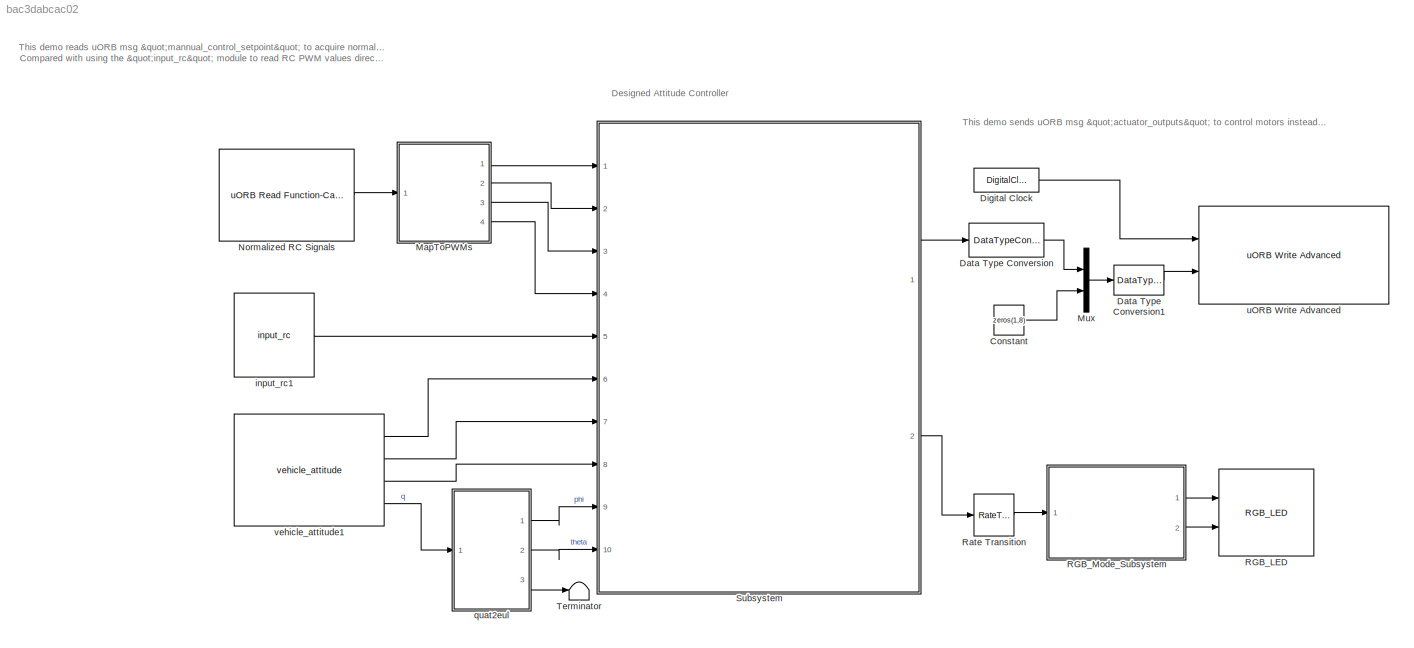
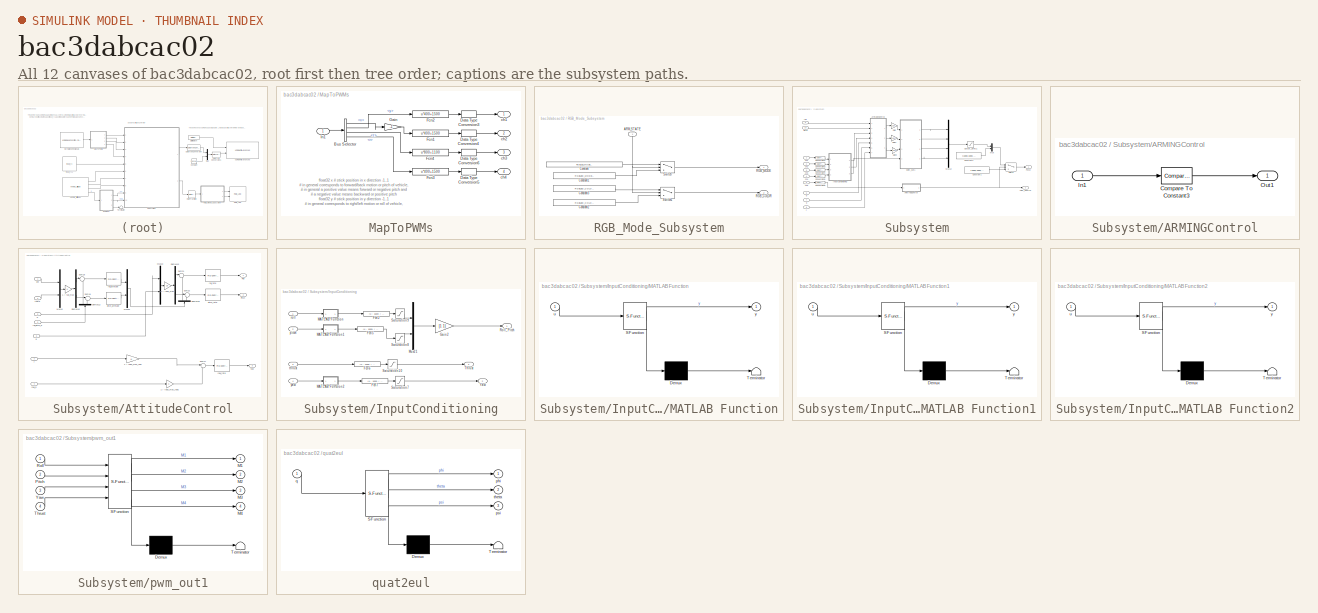
[diagram: thumbnail index - all 12 canvases of the model, root first then tree order]
MODEL slx_bac3dabcac02
KIND model
CONFIG AbsTol = auto
CONFIG EnableMultiTasking = off
CONFIG FixedStep = auto
CONFIG InitFcn = Init_control
CONFIG MaxStep = auto
CONFIG MinStep = auto
CONFIG RelTol = 1e-3
CONFIG SampleTimeConstraint = Unconstrained
CONFIG Solver = FixedStepDiscrete
CONFIG SolverName = FixedStepDiscrete
CONFIG StartTime = 0.0
CONFIG StopTime = inf
BLOCK [Constant] Constant
  Value = zeros(1,8)
BLOCK [DataTypeConversion] Data Type Conversion
  OutDataTypeStr = double
  RndMeth = Floor
  SaturateOnIntegerOverflow = off
BLOCK [DataTypeConversion] Data Type Conversion1
  OutDataTypeStr = single
  RndMeth = Floor
  SaturateOnIntegerOverflow = off
BLOCK [DigitalClock] Digital Clock
  SampleTime = -1
BLOCK [SubSystem] MapToPWMs
  Ports = [1, 4]
  RequestExecContextInheritance = off
  Variant = off
BLOCK [BusSelector] MapToPWMs/Bus Selector
  OutputAsBus = off
  OutputSignals = x,y,z,r
  Ports = [1, 4]
BLOCK [DataTypeConversion] MapToPWMs/Data Type Conversion3
  OutDataTypeStr = uint16
  RndMeth = Floor
  SaturateOnIntegerOverflow = off
BLOCK [DataTypeConversion] MapToPWMs/Data Type Conversion4
  OutDataTypeStr = uint16
  RndMeth = Floor
  SaturateOnIntegerOverflow = off
BLOCK [DataTypeConversion] MapToPWMs/Data Type Conversion5
  OutDataTypeStr = uint16
  RndMeth = Floor
  SaturateOnIntegerOverflow = off
BLOCK [DataTypeConversion] MapToPWMs/Data Type Conversion6
  OutDataTypeStr = uint16
  RndMeth = Floor
  SaturateOnIntegerOverflow = off
BLOCK [Fcn] MapToPWMs/Fcn1
  Expr = u*400+1500
BLOCK [Fcn] MapToPWMs/Fcn2
  Expr = u*400+1500
BLOCK [Fcn] MapToPWMs/Fcn3
  Expr = u*400+1500
BLOCK [Fcn] MapToPWMs/Fcn4
  Expr = u*800+1100
BLOCK [Gain] MapToPWMs/Gain
  Gain = -1
  OutDataTypeStr = Inherit: Inherit via internal rule
  ParamDataTypeStr = Inherit: Inherit via internal rule
  SaturateOnIntegerOverflow = off
BLOCK [Inport] MapToPWMs/In1
  IconDisplay = Port number
BLOCK [Outport] MapToPWMs/ch1
  IconDisplay = Port number
BLOCK [Outport] MapToPWMs/ch2
  IconDisplay = Port number
  Port = 2
BLOCK [Outport] MapToPWMs/ch3
  IconDisplay = Port number
  Port = 3
BLOCK [Outport] MapToPWMs/ch4
  IconDisplay = Port number
  Port = 4
BLOCK [Mux] Mux
  DisplayOption = bar
  Inputs = 2
  Ports = [2, 1]
BLOCK [Reference] Normalized RC Signals  REF=pixhawk_slib_uORB_RW/uORB Read Function-Call Trigger
  Ports = [0, 1]
  SourceBlock = pixhawk_slib_uORB_RW/uORB Read Function-Call Trigger
  SourceProductName = Pixhawk Target Blocks
BLOCK [Reference] RGB_LED  REF=pixhawk_slib_sensors_actuators/RGB_LED
  Ports = [2]
  SourceBlock = pixhawk_slib_sensors_actuators/RGB_LED
  SourceProductName = Pixhawk Target Blocks
  SourceType = PX4_RGBLED - controls the mode and color of the Pixhawk RGB LED
BLOCK [SubSystem] RGB_Mode_Subsystem
  Ports = [1, 2]
  RequestExecContextInheritance = off
  Variant = off
BLOCK [Inport] RGB_Mode_Subsystem/ARM_STATE
  IconDisplay = Port number
BLOCK [Constant] RGB_Mode_Subsystem/Constant
  OutDataTypeStr = Enum: RGBLED_MODE_ENUM
  Value = RGBLED_MODE_ENUM.SL_MODE_BLINK_FAST
BLOCK [Constant] RGB_Mode_Subsystem/Constant1
  OutDataTypeStr = Enum: RGBLED_MODE_ENUM
  Value = RGBLED_MODE_ENUM.SL_MODE_BREATHE
BLOCK [Constant] RGB_Mode_Subsystem/Constant2
  OutDataTypeStr = Enum: RGBLED_COLOR_ENUM
  Value = RGBLED_COLOR_ENUM.SL_COLOR_GREEN
BLOCK [Constant] RGB_Mode_Subsystem/Constant3
  OutDataTypeStr = Enum: RGBLED_COLOR_ENUM
  Value = RGBLED_COLOR_ENUM.SL_COLOR_RED
BLOCK [Outport] RGB_Mode_Subsystem/RGB_COLOR
  IconDisplay = Port number
  Port = 2
BLOCK [Outport] RGB_Mode_Subsystem/RGB_MODE
  IconDisplay = Port number
BLOCK [Switch] RGB_Mode_Subsystem/Switch
  Criteria = u2 ~= 0
  InputSameDT = off
  SaturateOnIntegerOverflow = off
  Threshold = 1500
BLOCK [Switch] RGB_Mode_Subsystem/Switch1
  Criteria = u2 ~= 0
  InputSameDT = off
  SaturateOnIntegerOverflow = off
  Threshold = 1500
BLOCK [RateTransition] Rate Transition
  OutPortSampleTime = 1
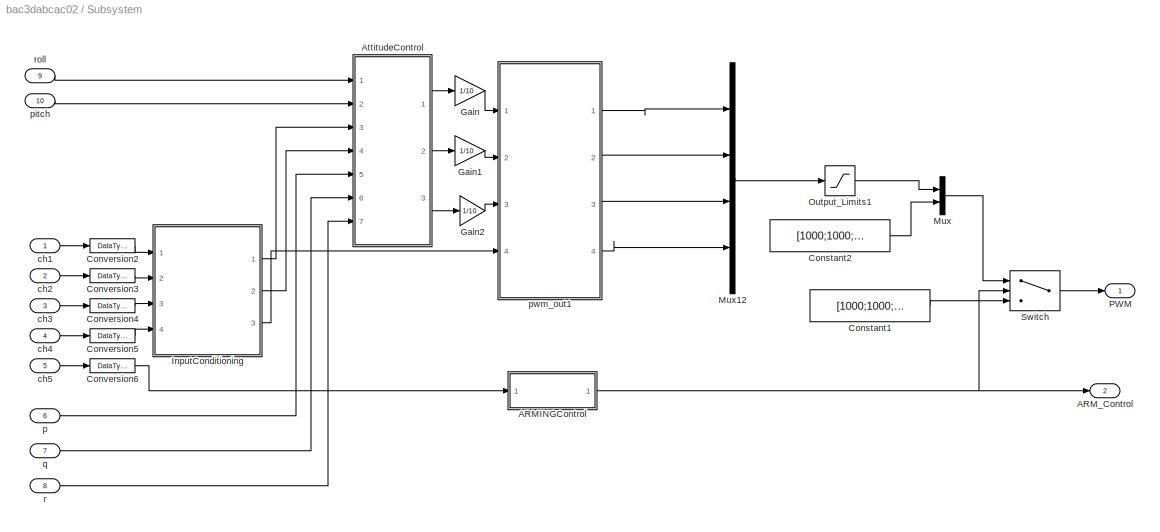
BLOCK [SubSystem] Subsystem
  Ports = [10, 2]
  RequestExecContextInheritance = off
  Variant = off
BLOCK [SubSystem] Subsystem/ARMINGControl
  Ports = [1, 1]
  RequestExecContextInheritance = off
  Variant = off
BLOCK [Reference] Subsystem/ARMINGControl/Compare To Constant3  REF=simulink/Logic and Bit
Operations/Compare
To Constant
  Ports = [1, 1]
  SourceBlock = simulink/Logic and Bit\nOperations/Compare\nTo Constant
  SourceProductBaseCode = SL
  SourceProductName = Simulink
  SourceType = Compare To Constant
BLOCK [Inport] Subsystem/ARMINGControl/In1
  IconDisplay = Port number
BLOCK [Outport] Subsystem/ARMINGControl/Out1
  IconDisplay = Port number
BLOCK [Outport] Subsystem/ARM_Control
  IconDisplay = Port number
  Port = 2
  PortDimensions = 1
  SamplingMode = Sample based
  SignalType = real
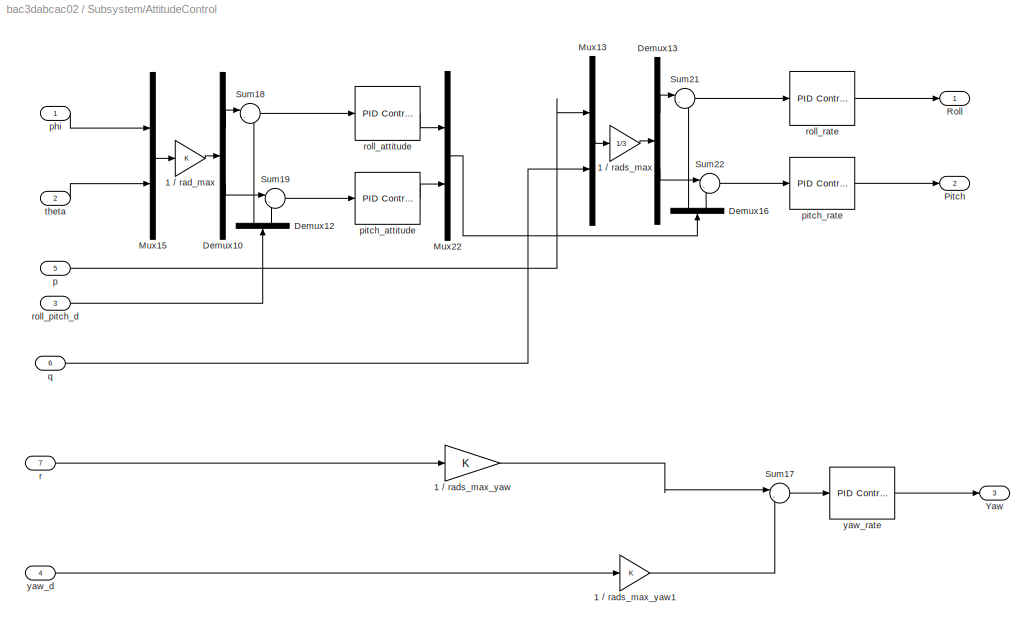
BLOCK [SubSystem] Subsystem/AttitudeControl
  Ports = [7, 3]
  RequestExecContextInheritance = off
  Variant = off
BLOCK [Gain] Subsystem/AttitudeControl/1 // rad_max
  OutDataTypeStr = Inherit: Inherit via internal rule
  ParamDataTypeStr = Inherit: Inherit via internal rule
  SaturateOnIntegerOverflow = off
BLOCK [Gain] Subsystem/AttitudeControl/1 // rads_max
  Gain = 1/3
  OutDataTypeStr = Inherit: Inherit via internal rule
  ParamDataTypeStr = Inherit: Inherit via internal rule
  SaturateOnIntegerOverflow = off
BLOCK [Gain] Subsystem/AttitudeControl/1 // rads_max_yaw
  OutDataTypeStr = Inherit: Inherit via internal rule
  ParamDataTypeStr = Inherit: Inherit via internal rule
  SaturateOnIntegerOverflow = off
BLOCK [Gain] Subsystem/AttitudeControl/1 // rads_max_yaw1
  OutDataTypeStr = Inherit: Inherit via internal rule
  ParamDataTypeStr = Inherit: Inherit via internal rule
  SaturateOnIntegerOverflow = off
BLOCK [Demux] Subsystem/AttitudeControl/Demux10
  DisplayOption = bar
  Outputs = 2
  Ports = [1, 2]
BLOCK [Demux] Subsystem/AttitudeControl/Demux12
  DisplayOption = bar
  Outputs = 2
  Ports = [1, 2]
BLOCK [Demux] Subsystem/AttitudeControl/Demux13
  DisplayOption = bar
  Outputs = 2
  Ports = [1, 2]
BLOCK [Demux] Subsystem/AttitudeControl/Demux16
  DisplayOption = bar
  Outputs = 2
  Ports = [1, 2]
BLOCK [Mux] Subsystem/AttitudeControl/Mux13
  DisplayOption = bar
  Inputs = 2
  Ports = [2, 1]
BLOCK [Mux] Subsystem/AttitudeControl/Mux15
  DisplayOption = bar
  Inputs = 2
  Ports = [2, 1]
BLOCK [Mux] Subsystem/AttitudeControl/Mux22
  DisplayOption = bar
  Inputs = 2
  Ports = [2, 1]
BLOCK [Outport] Subsystem/AttitudeControl/Pitch
  IconDisplay = Port number
  Port = 2
BLOCK [Outport] Subsystem/AttitudeControl/Roll
  IconDisplay = Port number
BLOCK [Sum] Subsystem/AttitudeControl/Sum17
  IconShape = round
  InputSameDT = off
  Inputs = |-+
  OutDataTypeStr = Inherit: Inherit via internal rule
  Ports = [2, 1]
  SaturateOnIntegerOverflow = off
BLOCK [Sum] Subsystem/AttitudeControl/Sum18
  IconShape = round
  InputSameDT = off
  Inputs = |-+
  OutDataTypeStr = Inherit: Inherit via internal rule
  Ports = [2, 1]
  SaturateOnIntegerOverflow = off
BLOCK [Sum] Subsystem/AttitudeControl/Sum19
  IconShape = round
  InputSameDT = off
  Inputs = |-+
  OutDataTypeStr = Inherit: Inherit via internal rule
  Ports = [2, 1]
  SaturateOnIntegerOverflow = off
BLOCK [Sum] Subsystem/AttitudeControl/Sum21
  IconShape = round
  InputSameDT = off
  Inputs = |-+
  OutDataTypeStr = Inherit: Inherit via internal rule
  Ports = [2, 1]
  SaturateOnIntegerOverflow = off
BLOCK [Sum] Subsystem/AttitudeControl/Sum22
  IconShape = round
  InputSameDT = off
  Inputs = |-+
  OutDataTypeStr = Inherit: Inherit via internal rule
  Ports = [2, 1]
  SaturateOnIntegerOverflow = off
BLOCK [Outport] Subsystem/AttitudeControl/Yaw
  IconDisplay = Port number
  Port = 3
BLOCK [Inport] Subsystem/AttitudeControl/p
  IconDisplay = Port number
  Port = 5
BLOCK [Inport] Subsystem/AttitudeControl/phi
  IconDisplay = Port number
BLOCK [Reference] Subsystem/AttitudeControl/pitch_attitude  REF=simulink/Continuous/PID Controller
  Ports = [1, 1]
  SourceBlock = simulink/Continuous/PID Controller
  SourceProductBaseCode = SL
  SourceProductName = Simulink
  SourceType = PID 1dof
BLOCK [Reference] Subsystem/AttitudeControl/pitch_rate  REF=simulink/Continuous/PID Controller
  Ports = [1, 1]
  SourceBlock = simulink/Continuous/PID Controller
  SourceProductBaseCode = SL
  SourceProductName = Simulink
  SourceType = PID 1dof
BLOCK [Inport] Subsystem/AttitudeControl/q
  IconDisplay = Port number
  Port = 6
BLOCK [Inport] Subsystem/AttitudeControl/r
  IconDisplay = Port number
  Port = 7
BLOCK [Reference] Subsystem/AttitudeControl/roll_attitude  REF=simulink/Continuous/PID Controller
  Ports = [1, 1]
  SourceBlock = simulink/Continuous/PID Controller
  SourceProductBaseCode = SL
  SourceProductName = Simulink
  SourceType = PID 1dof
BLOCK [Inport] Subsystem/AttitudeControl/roll_pitch_d
  IconDisplay = Port number
  Port = 3
BLOCK [Reference] Subsystem/AttitudeControl/roll_rate  REF=simulink/Continuous/PID Controller
  Ports = [1, 1]
  SourceBlock = simulink/Continuous/PID Controller
  SourceProductBaseCode = SL
  SourceProductName = Simulink
  SourceType = PID 1dof
BLOCK [Inport] Subsystem/AttitudeControl/theta
  IconDisplay = Port number
  Port = 2
BLOCK [Inport] Subsystem/AttitudeControl/yaw_d
  IconDisplay = Port number
  Port = 4
BLOCK [Reference] Subsystem/AttitudeControl/yaw_rate  REF=simulink/Continuous/PID Controller
  Ports = [1, 1]
  SourceBlock = simulink/Continuous/PID Controller
  SourceProductBaseCode = SL
  SourceProductName = Simulink
  SourceType = PID 1dof
BLOCK [Constant] Subsystem/Constant1
  Value = [1000;1000;1000;1000;1000;1000;1000;1000]
BLOCK [Constant] Subsystem/Constant2
  Value = [1000;1000;1000;1000]
BLOCK [DataTypeConversion] Subsystem/Conversion2
  OutDataTypeStr = double
  RndMeth = Floor
  SaturateOnIntegerOverflow = off
BLOCK [DataTypeConversion] Subsystem/Conversion3
  OutDataTypeStr = double
  RndMeth = Floor
  SaturateOnIntegerOverflow = off
BLOCK [DataTypeConversion] Subsystem/Conversion4
  OutDataTypeStr = double
  RndMeth = Floor
  SaturateOnIntegerOverflow = off
BLOCK [DataTypeConversion] Subsystem/Conversion5
  OutDataTypeStr = double
  RndMeth = Floor
  SaturateOnIntegerOverflow = off
BLOCK [DataTypeConversion] Subsystem/Conversion6
  OutDataTypeStr = double
  RndMeth = Floor
  SaturateOnIntegerOverflow = off
BLOCK [Gain] Subsystem/Gain
  Gain = 1/10
  OutDataTypeStr = Inherit: Inherit via internal rule
  ParamDataTypeStr = Inherit: Inherit via internal rule
  SaturateOnIntegerOverflow = off
BLOCK [Gain] Subsystem/Gain1
  Gain = 1/10
  OutDataTypeStr = Inherit: Inherit via internal rule
  ParamDataTypeStr = Inherit: Inherit via internal rule
  SaturateOnIntegerOverflow = off
BLOCK [Gain] Subsystem/Gain2
  Gain = 1/10
  OutDataTypeStr = Inherit: Inherit via internal rule
  ParamDataTypeStr = Inherit: Inherit via internal rule
  SaturateOnIntegerOverflow = off
BLOCK [SubSystem] Subsystem/InputConditioning
  Ports = [4, 3]
  RequestExecContextInheritance = off
  Variant = off
BLOCK [Fcn] Subsystem/InputConditioning/Fcn2
  Expr = (u - 1500) / 800
BLOCK [Fcn] Subsystem/InputConditioning/Fcn5
  Expr = (u - 1500) / 800
BLOCK [Fcn] Subsystem/InputConditioning/Fcn6
  Expr = (u - 1100) / 800
BLOCK [Fcn] Subsystem/InputConditioning/Fcn7
  Expr = (u - 1500) / 800
BLOCK [Gain] Subsystem/InputConditioning/Gain2
  Gain = [1 1]
  OutDataTypeStr = Inherit: Inherit via back propagation
  ParamDataTypeStr = Inherit: Inherit via internal rule
  SaturateOnIntegerOverflow = off
BLOCK [SubSystem] Subsystem/InputConditioning/MATLAB Function
  ErrorFcn = Stateflow.Translate.translate
  PermitHierarchicalResolution = ExplicitOnly
  Ports = [1, 1]
  RequestExecContextInheritance = off
  SFBlockType = MATLAB Function
  TreatAsAtomicUnit = on
  Variant = off
BLOCK [Demux] Subsystem/InputConditioning/MATLAB Function/ Demux 
  Outputs = 1
  Ports = [1, 1]
BLOCK [S-Function] Subsystem/InputConditioning/MATLAB Function/ SFunction 
  EnableBusSupport = on
  FunctionName = sf_sfun
  PortCounts = [1 2]
  Ports = [1, 2]
  SFcnIsStateOwnerBlock = off
  SFunctionDeploymentMode = off
  Tag = Stateflow S-Function Exp4_AttitudeSystemCodeGen 1
BLOCK [Terminator] Subsystem/InputConditioning/MATLAB Function/ Terminator 
BLOCK [Inport] Subsystem/InputConditioning/MATLAB Function/u
  IconDisplay = Port number
BLOCK [Outport] Subsystem/InputConditioning/MATLAB Function/y
  IconDisplay = Port number
BLOCK [SubSystem] Subsystem/InputConditioning/MATLAB Function1
  ErrorFcn = Stateflow.Translate.translate
  PermitHierarchicalResolution = ExplicitOnly
  Ports = [1, 1]
  RequestExecContextInheritance = off
  SFBlockType = MATLAB Function
  TreatAsAtomicUnit = on
  Variant = off
BLOCK [Demux] Subsystem/InputConditioning/MATLAB Function1/ Demux 
  Outputs = 1
  Ports = [1, 1]
BLOCK [S-Function] Subsystem/InputConditioning/MATLAB Function1/ SFunction 
  EnableBusSupport = on
  FunctionName = sf_sfun
  PortCounts = [1 2]
  Ports = [1, 2]
  SFcnIsStateOwnerBlock = off
  SFunctionDeploymentMode = off
  Tag = Stateflow S-Function Exp4_AttitudeSystemCodeGen 2
BLOCK [Terminator] Subsystem/InputConditioning/MATLAB Function1/ Terminator 
BLOCK [Inport] Subsystem/InputConditioning/MATLAB Function1/u
  IconDisplay = Port number
BLOCK [Outport] Subsystem/InputConditioning/MATLAB Function1/y
  IconDisplay = Port number
BLOCK [SubSystem] Subsystem/InputConditioning/MATLAB Function2
  ErrorFcn = Stateflow.Translate.translate
  PermitHierarchicalResolution = ExplicitOnly
  Ports = [1, 1]
  RequestExecContextInheritance = off
  SFBlockType = MATLAB Function
  TreatAsAtomicUnit = on
  Variant = off
BLOCK [Demux] Subsystem/InputConditioning/MATLAB Function2/ Demux 
  Outputs = 1
  Ports = [1, 1]
BLOCK [S-Function] Subsystem/InputConditioning/MATLAB Function2/ SFunction 
  EnableBusSupport = on
  FunctionName = sf_sfun
  PortCounts = [1 2]
  Ports = [1, 2]
  SFcnIsStateOwnerBlock = off
  SFunctionDeploymentMode = off
  Tag = Stateflow S-Function Exp4_AttitudeSystemCodeGen 3
BLOCK [Terminator] Subsystem/InputConditioning/MATLAB Function2/ Terminator 
BLOCK [Inport] Subsystem/InputConditioning/MATLAB Function2/u
  IconDisplay = Port number
BLOCK [Outport] Subsystem/InputConditioning/MATLAB Function2/y
  IconDisplay = Port number
BLOCK [Mux] Subsystem/InputConditioning/Mux21
  DisplayOption = bar
  Inputs = 2
  Ports = [2, 1]
BLOCK [Outport] Subsystem/InputConditioning/Roll_Pitch
  IconDisplay = Port number
BLOCK [Saturate] Subsystem/InputConditioning/Saturation10
  InputPortMap = u0
  LowerLimit = 0
  Ports = [1, 1]
  UpperLimit = 1
BLOCK [Saturate] Subsystem/InputConditioning/Saturation7
  InputPortMap = u0
  LowerLimit = -1
  Ports = [1, 1]
  UpperLimit = 1
BLOCK [Saturate] Subsystem/InputConditioning/Saturation8
  InputPortMap = u0
  LowerLimit = -1
  Ports = [1, 1]
  UpperLimit = 1
BLOCK [Saturate] Subsystem/InputConditioning/Saturation9
  InputPortMap = u0
  LowerLimit = -1
  Ports = [1, 1]
  UpperLimit = 1
BLOCK [Outport] Subsystem/InputConditioning/Thrust
  IconDisplay = Port number
  Port = 3
BLOCK [Outport] Subsystem/InputConditioning/Yaw
  IconDisplay = Port number
  Port = 2
BLOCK [Inport] Subsystem/InputConditioning/pitch
  IconDisplay = Port number
  Port = 2
BLOCK [Inport] Subsystem/InputConditioning/roll
  IconDisplay = Port number
BLOCK [Inport] Subsystem/InputConditioning/thrust
  IconDisplay = Port number
  Port = 3
BLOCK [Inport] Subsystem/InputConditioning/yaw
  IconDisplay = Port number
  Port = 4
BLOCK [Mux] Subsystem/Mux
  DisplayOption = bar
  Inputs = 2
  Ports = [2, 1]
BLOCK [Mux] Subsystem/Mux12
  DisplayOption = bar
  Ports = [4, 1]
BLOCK [Saturate] Subsystem/Output_Limits1
  InputPortMap = u0
  LowerLimit = 1000
  Ports = [1, 1]
  UpperLimit = 2000
BLOCK [Outport] Subsystem/PWM
  IconDisplay = Port number
  PortDimensions = 8
  SamplingMode = Sample based
  SignalType = real
BLOCK [Switch] Subsystem/Switch
  Criteria = u2 > Threshold
  InputSameDT = off
  SaturateOnIntegerOverflow = off
  Threshold = 0.5
BLOCK [Inport] Subsystem/ch1
  IconDisplay = Port number
  OutDataTypeStr = uint16
  PortDimensions = 1
  SamplingMode = Sample based
  SignalType = real
BLOCK [Inport] Subsystem/ch2
  IconDisplay = Port number
  OutDataTypeStr = uint16
  Port = 2
  PortDimensions = 1
  SamplingMode = Sample based
  SignalType = real
BLOCK [Inport] Subsystem/ch3
  IconDisplay = Port number
  OutDataTypeStr = uint16
  Port = 3
  PortDimensions = 1
  SamplingMode = Sample based
  SignalType = real
BLOCK [Inport] Subsystem/ch4
  IconDisplay = Port number
  OutDataTypeStr = uint16
  Port = 4
  PortDimensions = 1
  SamplingMode = Sample based
  SignalType = real
BLOCK [Inport] Subsystem/ch5
  IconDisplay = Port number
  Interpolate = off
  OutDataTypeStr = uint16
  Port = 5
  PortDimensions = 1
  SamplingMode = Sample based
  SignalType = real
BLOCK [Inport] Subsystem/p
  IconDisplay = Port number
  Port = 6
  PortDimensions = 1
  SamplingMode = Sample based
  SignalType = real
BLOCK [Inport] Subsystem/pitch
  IconDisplay = Port number
  Port = 10
  PortDimensions = 1
  SamplingMode = Sample based
  SignalType = real
BLOCK [SubSystem] Subsystem/pwm_out1
  ErrorFcn = Stateflow.Translate.translate
  PermitHierarchicalResolution = ExplicitOnly
  Ports = [4, 4]
  RequestExecContextInheritance = off
  SFBlockType = MATLAB Function
  SystemSampleTime = 0.004
  TreatAsAtomicUnit = on
  Variant = off
BLOCK [Demux] Subsystem/pwm_out1/ Demux 
  Outputs = 1
  Ports = [1, 1]
BLOCK [S-Function] Subsystem/pwm_out1/ SFunction 
  EnableBusSupport = on
  FunctionName = sf_sfun
  PortCounts = [4 5]
  Ports = [4, 5]
  SFcnIsStateOwnerBlock = off
  SFunctionDeploymentMode = off
  Tag = Stateflow S-Function Exp4_AttitudeSystemCodeGen 8
BLOCK [Terminator] Subsystem/pwm_out1/ Terminator 
BLOCK [Outport] Subsystem/pwm_out1/M1
  IconDisplay = Port number
BLOCK [Outport] Subsystem/pwm_out1/M2
  IconDisplay = Port number
  Port = 2
BLOCK [Outport] Subsystem/pwm_out1/M3
  IconDisplay = Port number
  Port = 3
BLOCK [Outport] Subsystem/pwm_out1/M4
  IconDisplay = Port number
  Port = 4
BLOCK [Inport] Subsystem/pwm_out1/Pitch
  IconDisplay = Port number
  Port = 2
BLOCK [Inport] Subsystem/pwm_out1/Roll
  IconDisplay = Port number
BLOCK [Inport] Subsystem/pwm_out1/Thrust
  IconDisplay = Port number
  Port = 4
BLOCK [Inport] Subsystem/pwm_out1/Yaw
  IconDisplay = Port number
  Port = 3
BLOCK [Inport] Subsystem/q
  IconDisplay = Port number
  Port = 7
  PortDimensions = 1
  SamplingMode = Sample based
  SignalType = real
BLOCK [Inport] Subsystem/r
  IconDisplay = Port number
  Port = 8
  PortDimensions = 1
  SamplingMode = Sample based
  SignalType = real
BLOCK [Inport] Subsystem/roll
  IconDisplay = Port number
  Port = 9
  PortDimensions = 1
  SamplingMode = Sample based
  SignalType = real
BLOCK [Terminator] Terminator
BLOCK [Reference] input_rc1  REF=pixhawk_slib_sensors_actuators/input_rc
  Description = RC Input Block\n\nThis block provides user input control to the model.\nIt uses the input_rc uORB topic.\n\nThe user has the ability to choose which channels are available as outputs from this block and also some optional outputs. These include \nChannels 1 through 18\ndouble data type indicating the PWM value from the controller \nmeasured pulse widths for each of the supported channels \nChannel Count \nu...<+1797ch>
  Ports = [0, 1]
  SourceBlock = pixhawk_slib_sensors_actuators/input_rc
  SourceProductName = Pixhawk Target Blocks
  SourceType = PX4_Input_RC
BLOCK [SubSystem] quat2eul
  ErrorFcn = Stateflow.Translate.translate
  PermitHierarchicalResolution = ExplicitOnly
  Ports = [1, 3]
  RequestExecContextInheritance = off
  SFBlockType = MATLAB Function
  TreatAsAtomicUnit = on
  Variant = off
BLOCK [Demux] quat2eul/ Demux 
  Outputs = 1
  Ports = [1, 1]
BLOCK [S-Function] quat2eul/ SFunction 
  EnableBusSupport = on
  FunctionName = sf_sfun
  PortCounts = [1 4]
  Ports = [1, 4]
  SFcnIsStateOwnerBlock = off
  SFunctionDeploymentMode = off
  Tag = Stateflow S-Function Exp4_AttitudeSystemCodeGen 10
BLOCK [Terminator] quat2eul/ Terminator 
BLOCK [Outport] quat2eul/phi
  IconDisplay = Port number
BLOCK [Outport] quat2eul/psi
  IconDisplay = Port number
  Port = 3
BLOCK [Inport] quat2eul/q
  IconDisplay = Port number
BLOCK [Outport] quat2eul/theta
  IconDisplay = Port number
  Port = 2
BLOCK [Reference] uORB Write Advanced  REF=pixhawk_slib_uORB_RW/uORB Write Advanced
  Ports = [2]
  SourceBlock = pixhawk_slib_uORB_RW/uORB Write Advanced
  SourceProductName = Pixhawk Target Blocks
  UserDataPersistent = on
BLOCK [Reference] vehicle_attitude1  REF=pixhawk_slib_sensors_actuators/vehicle_attitude
  Ports = [0, 4]
  SourceBlock = pixhawk_slib_sensors_actuators/vehicle_attitude
  SourceProductName = Pixhawk Target Blocks
  SourceType = PX4_Vehicle_Attitude
ANNOTATION (root): Designed Attitude Controller
ANNOTATION (root): This demo reads uORB msg "mannual_control_setpoint" to acquire normalized and calibrated RC signals (-1~1 for pitch, roll, yaw control, and 0~1 for throttle control) and then map them to 1000~2000's PWMs values. Compared with using the "input_rc" module to read RC PWM values directlly, this is more reliable and convinenient because you don't need to worry about calibration of RCs.
ANNOTATION (root): This demo sends uORB msg "actuator_outputs" to control motors instead of using the "PWM_output" module, because this demo is for hardware-in-the-loop simulation, we need to send control signals to CopterSim instead of acutal motors.
ANNOTATION MapToPWMs: float32 x # stick position in x direction -1..1 # in general corresponds to forward/back motion or pitch of vehicle, # in general a positive value means forward or negative pitch and # a negative value means backward or positive pitch float32 y # stick position in y direction -1..1 # in general corresponds to right/left motion or roll of vehicle, # in general a positive value means right or positi...<+526ch>
LINE Constant:1 -> Mux:2
LINE Data Type Conversion1:1 -> uORB Write Advanced:2
LINE Data Type Conversion:1 -> Mux:1
LINE Digital Clock:1 -> uORB Write Advanced:1
LINE MapToPWMs/Bus Selector:1 -> MapToPWMs/Gain:1
LINE MapToPWMs/Bus Selector:2 -> MapToPWMs/Fcn2:1
LINE MapToPWMs/Bus Selector:3 -> MapToPWMs/Fcn4:1
LINE MapToPWMs/Bus Selector:4 -> MapToPWMs/Fcn3:1
LINE MapToPWMs/Data Type Conversion3:1 -> MapToPWMs/ch1:1
LINE MapToPWMs/Data Type Conversion4:1 -> MapToPWMs/ch2:1
LINE MapToPWMs/Data Type Conversion5:1 -> MapToPWMs/ch4:1
LINE MapToPWMs/Data Type Conversion6:1 -> MapToPWMs/ch3:1
LINE MapToPWMs/Fcn1:1 -> MapToPWMs/Data Type Conversion4:1
LINE MapToPWMs/Fcn2:1 -> MapToPWMs/Data Type Conversion3:1
LINE MapToPWMs/Fcn3:1 -> MapToPWMs/Data Type Conversion5:1
LINE MapToPWMs/Fcn4:1 -> MapToPWMs/Data Type Conversion6:1
LINE MapToPWMs/Gain:1 -> MapToPWMs/Fcn1:1
LINE MapToPWMs/In1:1 -> MapToPWMs/Bus Selector:1
LINE MapToPWMs:1 -> Subsystem:1
LINE MapToPWMs:2 -> Subsystem:2
LINE MapToPWMs:3 -> Subsystem:3
LINE MapToPWMs:4 -> Subsystem:4
LINE Mux:1 -> Data Type Conversion1:1
LINE Normalized RC Signals:1 -> MapToPWMs:1
NET RGB_Mode_Subsystem/ARM_STATE:1 -> RGB_Mode_Subsystem/Switch1:2, RGB_Mode_Subsystem/Switch:2
LINE RGB_Mode_Subsystem/Constant1:1 -> RGB_Mode_Subsystem/Switch:3
LINE RGB_Mode_Subsystem/Constant2:1 -> RGB_Mode_Subsystem/Switch1:3
LINE RGB_Mode_Subsystem/Constant3:1 -> RGB_Mode_Subsystem/Switch1:1
LINE RGB_Mode_Subsystem/Constant:1 -> RGB_Mode_Subsystem/Switch:1
LINE RGB_Mode_Subsystem/Switch1:1 -> RGB_Mode_Subsystem/RGB_COLOR:1
LINE RGB_Mode_Subsystem/Switch:1 -> RGB_Mode_Subsystem/RGB_MODE:1
LINE RGB_Mode_Subsystem:1 -> RGB_LED:1
LINE RGB_Mode_Subsystem:2 -> RGB_LED:2
LINE Rate Transition:1 -> RGB_Mode_Subsystem:1
LINE Subsystem/ARMINGControl/Compare To Constant3:1 -> Subsystem/ARMINGControl/Out1:1
LINE Subsystem/ARMINGControl/In1:1 -> Subsystem/ARMINGControl/Compare To Constant3:1
NET Subsystem/ARMINGControl:1 -> Subsystem/ARM_Control:1, Subsystem/Switch:2
LINE Subsystem/AttitudeControl/1 // rad_max:1 -> Subsystem/AttitudeControl/Demux10:1
LINE Subsystem/AttitudeControl/1 // rads_max:1 -> Subsystem/AttitudeControl/Demux13:1
LINE Subsystem/AttitudeControl/1 // rads_max_yaw1:1 -> Subsystem/AttitudeControl/Sum17:2
LINE Subsystem/AttitudeControl/1 // rads_max_yaw:1 -> Subsystem/AttitudeControl/Sum17:1
LINE Subsystem/AttitudeControl/Demux10:1 -> Subsystem/AttitudeControl/Sum18:1
LINE Subsystem/AttitudeControl/Demux10:2 -> Subsystem/AttitudeControl/Sum19:1
LINE Subsystem/AttitudeControl/Demux12:1 -> Subsystem/AttitudeControl/Sum18:2
LINE Subsystem/AttitudeControl/Demux12:2 -> Subsystem/AttitudeControl/Sum19:2
LINE Subsystem/AttitudeControl/Demux13:1 -> Subsystem/AttitudeControl/Sum21:1
LINE Subsystem/AttitudeControl/Demux13:2 -> Subsystem/AttitudeControl/Sum22:1
LINE Subsystem/AttitudeControl/Demux16:1 -> Subsystem/AttitudeControl/Sum21:2
LINE Subsystem/AttitudeControl/Demux16:2 -> Subsystem/AttitudeControl/Sum22:2
LINE Subsystem/AttitudeControl/Mux13:1 -> Subsystem/AttitudeControl/1 // rads_max:1
LINE Subsystem/AttitudeControl/Mux15:1 -> Subsystem/AttitudeControl/1 // rad_max:1
LINE Subsystem/AttitudeControl/Mux22:1 -> Subsystem/AttitudeControl/Demux16:1
LINE Subsystem/AttitudeControl/Sum17:1 -> Subsystem/AttitudeControl/yaw_rate:1
LINE Subsystem/AttitudeControl/Sum18:1 -> Subsystem/AttitudeControl/roll_attitude:1
LINE Subsystem/AttitudeControl/Sum19:1 -> Subsystem/AttitudeControl/pitch_attitude:1
LINE Subsystem/AttitudeControl/Sum21:1 -> Subsystem/AttitudeControl/roll_rate:1
LINE Subsystem/AttitudeControl/Sum22:1 -> Subsystem/AttitudeControl/pitch_rate:1
LINE Subsystem/AttitudeControl/p:1 -> Subsystem/AttitudeControl/Mux13:1
LINE Subsystem/AttitudeControl/phi:1 -> Subsystem/AttitudeControl/Mux15:1
LINE Subsystem/AttitudeControl/pitch_attitude:1 -> Subsystem/AttitudeControl/Mux22:2
LINE Subsystem/AttitudeControl/pitch_rate:1 -> Subsystem/AttitudeControl/Pitch:1
LINE Subsystem/AttitudeControl/q:1 -> Subsystem/AttitudeControl/Mux13:2
LINE Subsystem/AttitudeControl/r:1 -> Subsystem/AttitudeControl/1 // rads_max_yaw:1
LINE Subsystem/AttitudeControl/roll_attitude:1 -> Subsystem/AttitudeControl/Mux22:1
LINE Subsystem/AttitudeControl/roll_pitch_d:1 -> Subsystem/AttitudeControl/Demux12:1
LINE Subsystem/AttitudeControl/roll_rate:1 -> Subsystem/AttitudeControl/Roll:1
LINE Subsystem/AttitudeControl/theta:1 -> Subsystem/AttitudeControl/Mux15:2
LINE Subsystem/AttitudeControl/yaw_d:1 -> Subsystem/AttitudeControl/1 // rads_max_yaw1:1
LINE Subsystem/AttitudeControl/yaw_rate:1 -> Subsystem/AttitudeControl/Yaw:1
LINE Subsystem/AttitudeControl:1 -> Subsystem/Gain:1
LINE Subsystem/AttitudeControl:2 -> Subsystem/Gain1:1
LINE Subsystem/AttitudeControl:3 -> Subsystem/Gain2:1
LINE Subsystem/Constant1:1 -> Subsystem/Switch:3
LINE Subsystem/Constant2:1 -> Subsystem/Mux:2
LINE Subsystem/Conversion2:1 -> Subsystem/InputConditioning:1
LINE Subsystem/Conversion3:1 -> Subsystem/InputConditioning:2
LINE Subsystem/Conversion4:1 -> Subsystem/InputConditioning:3
LINE Subsystem/Conversion5:1 -> Subsystem/InputConditioning:4
LINE Subsystem/Conversion6:1 -> Subsystem/ARMINGControl:1
LINE Subsystem/Gain1:1 -> Subsystem/pwm_out1:2
LINE Subsystem/Gain2:1 -> Subsystem/pwm_out1:3
LINE Subsystem/Gain:1 -> Subsystem/pwm_out1:1
LINE Subsystem/InputConditioning/Fcn2:1 -> Subsystem/InputConditioning/Saturation9:1
LINE Subsystem/InputConditioning/Fcn5:1 -> Subsystem/InputConditioning/Saturation8:1
LINE Subsystem/InputConditioning/Fcn6:1 -> Subsystem/InputConditioning/Saturation10:1
LINE Subsystem/InputConditioning/Fcn7:1 -> Subsystem/InputConditioning/Saturation7:1
LINE Subsystem/InputConditioning/Gain2:1 -> Subsystem/InputConditioning/Roll_Pitch:1
LINE Subsystem/InputConditioning/MATLAB Function1:1 -> Subsystem/InputConditioning/Fcn5:1
LINE Subsystem/InputConditioning/MATLAB Function2:1 -> Subsystem/InputConditioning/Fcn7:1
LINE Subsystem/InputConditioning/MATLAB Function:1 -> Subsystem/InputConditioning/Fcn2:1
LINE Subsystem/InputConditioning/Mux21:1 -> Subsystem/InputConditioning/Gain2:1
LINE Subsystem/InputConditioning/Saturation10:1 -> Subsystem/InputConditioning/Thrust:1
LINE Subsystem/InputConditioning/Saturation7:1 -> Subsystem/InputConditioning/Yaw:1
LINE Subsystem/InputConditioning/Saturation8:1 -> Subsystem/InputConditioning/Mux21:2
LINE Subsystem/InputConditioning/Saturation9:1 -> Subsystem/InputConditioning/Mux21:1
LINE Subsystem/InputConditioning/pitch:1 -> Subsystem/InputConditioning/MATLAB Function1:1
LINE Subsystem/InputConditioning/roll:1 -> Subsystem/InputConditioning/MATLAB Function:1
LINE Subsystem/InputConditioning/thrust:1 -> Subsystem/InputConditioning/Fcn6:1
LINE Subsystem/InputConditioning/yaw:1 -> Subsystem/InputConditioning/MATLAB Function2:1
LINE Subsystem/InputConditioning:1 -> Subsystem/AttitudeControl:3
LINE Subsystem/InputConditioning:2 -> Subsystem/AttitudeControl:4
LINE Subsystem/InputConditioning:3 -> Subsystem/pwm_out1:4
LINE Subsystem/Mux12:1 -> Subsystem/Output_Limits1:1
LINE Subsystem/Mux:1 -> Subsystem/Switch:1
LINE Subsystem/Output_Limits1:1 -> Subsystem/Mux:1
LINE Subsystem/Switch:1 -> Subsystem/PWM:1
LINE Subsystem/ch1:1 -> Subsystem/Conversion2:1
LINE Subsystem/ch2:1 -> Subsystem/Conversion3:1
LINE Subsystem/ch3:1 -> Subsystem/Conversion4:1
LINE Subsystem/ch4:1 -> Subsystem/Conversion5:1
LINE Subsystem/ch5:1 -> Subsystem/Conversion6:1
LINE Subsystem/p:1 -> Subsystem/AttitudeControl:5
LINE Subsystem/pitch:1 -> Subsystem/AttitudeControl:2
LINE Subsystem/pwm_out1:1 -> Subsystem/Mux12:1
LINE Subsystem/pwm_out1:2 -> Subsystem/Mux12:2
LINE Subsystem/pwm_out1:3 -> Subsystem/Mux12:3
LINE Subsystem/pwm_out1:4 -> Subsystem/Mux12:4
LINE Subsystem/q:1 -> Subsystem/AttitudeControl:6
LINE Subsystem/r:1 -> Subsystem/AttitudeControl:7
LINE Subsystem/roll:1 -> Subsystem/AttitudeControl:1
LINE Subsystem:1 -> Data Type Conversion:1
LINE Subsystem:2 -> Rate Transition:1
LINE input_rc1:1 -> Subsystem:5
LINE quat2eul:1 -> Subsystem:9
LINE quat2eul:2 -> Subsystem:10
LINE quat2eul:3 -> Terminator:1
LINE vehicle_attitude1:1 -> Subsystem:6
LINE vehicle_attitude1:2 -> Subsystem:7
LINE vehicle_attitude1:3 -> Subsystem:8
LINE vehicle_attitude1:4 -> quat2eul:1
note: NET lines group one-source signal fan-out (src -> all destinations, sorted); 1:1 wires keep LINE
CHART Subsystem/InputConditioning/MATLAB Function states=1 transitions=1
  STATE_LABEL 'eML_blk_kernel()'
  STATE_LABEL 'SCRIPT:\nfunction y = fcn(u)\n\n if(u>1550)\n    y=u;\n else\n     if(u<1450)\n     y=u;\n     else\n         y=1500;\n     end\n end\n \n'
CHART Subsystem/InputConditioning/MATLAB Function1 states=1 transitions=1
  STATE_LABEL 'eML_blk_kernel()'
  STATE_LABEL 'SCRIPT:\nfunction y = fcn(u)\n\n if(u>1550)\n    y=u;\n else\n     if(u<1450)\n     y=u;\n     else\n         y=1500;\n     end\n end\n \n'
CHART Subsystem/InputConditioning/MATLAB Function2 states=1 transitions=1
  STATE_LABEL 'eML_blk_kernel()'
  STATE_LABEL 'SCRIPT:\nfunction y = fcn(u)\n\n if(u>1550)\n    y=u;\n else\n     if(u<1450)\n     y=u;\n     else\n         y=1500;\n     end\n end\n \n'
CHART Subsystem/pwm_out1 states=1 transitions=1
  STATE_LABEL 'eML_blk_kernel()'
  STATE_LABEL 'SCRIPT:\nfunction [M1, M2, M3, M4] = motor_mixer(Roll, Pitch, Yaw, Thrust)\n\nidle_PWM = 1000;\n\n% Quad XROLL （根据QP里面的叉字形结构的文字）\n% M1 = ((Pitch+ Yaw)+Thrust-Roll) * 1000 + idle_PWM;\n %M2 = ((Pitch - Yaw)+Thrust+Roll) * 1000 + idle_PWM;\n %M3 = ((Roll +Yaw) + Thrust-Pitch) * 1000 + idle_PWM;\n %M4 = ((-Roll - Pitch-Yaw) + Thrust) * 1000 + idle_PWM;\n% M5 = 1000;\n% M6 = 1000;\n% M7 = 1000;\n% M8 = 1000;\n%qp上实...<+2078ch>'
CHART quat2eul states=1 transitions=1
  STATE_LABEL 'eML_blk_kernel()'
  STATE_LABEL 'SCRIPT:\nfunction [phi,theta,psi] = quat2eul(q)\n% Conversion from Quaternion to Euler angles based on the PX4 Firmware\n% v1.6.5 release.\n% \n% Quaternion -> DCM -> Euler Angles\n% INPUT:\n%   q: Quaternion vector of the format: (a + bi + cj + dk)\n% OUTPUT:\n%   [phi,theta,psi]: Euler angles in radians.\n% \n \n    a = q(1);\n    b = q(2);\n    c = q(3);\n    d = q(4);\n\n    aSq = a*a;\n    bSq = b*b;\n    cSq =...<+673ch>'
